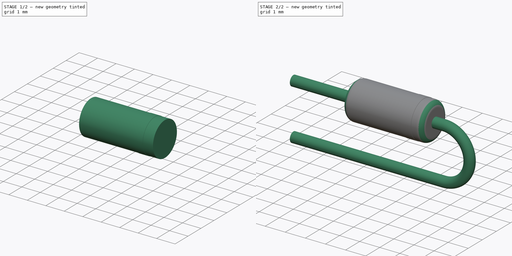
[diagram: build sequence overview — one tinted view per stage of 2, left to right]
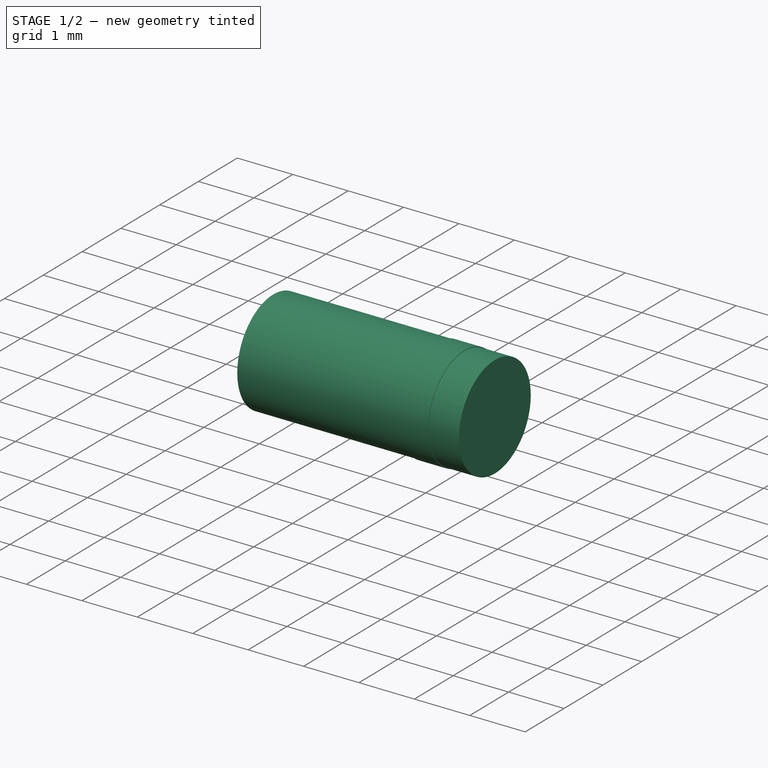
[diagram: stage 1 of 2 — iso view after this stage's code; geometry added in this stage tinted green]
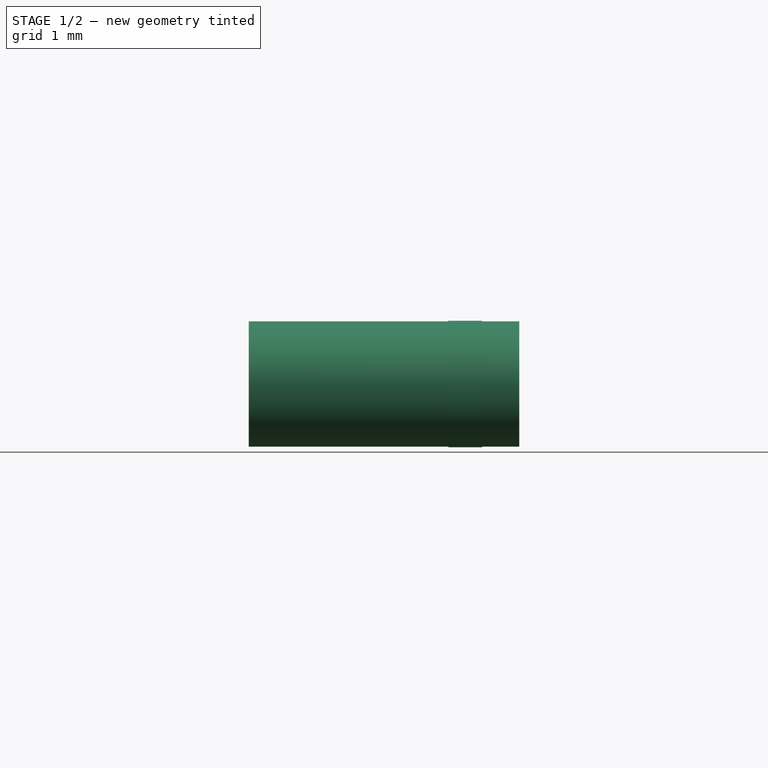
[diagram: stage 1 of 2 — front view after this stage's code; geometry added in this stage tinted green]
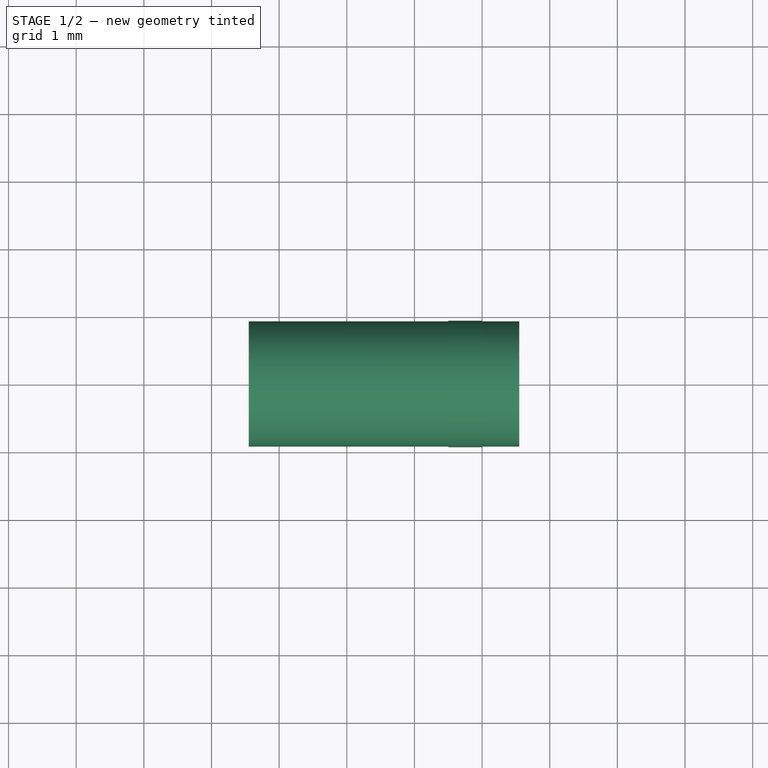
[diagram: stage 1 of 2 — top view after this stage's code; geometry added in this stage tinted green]
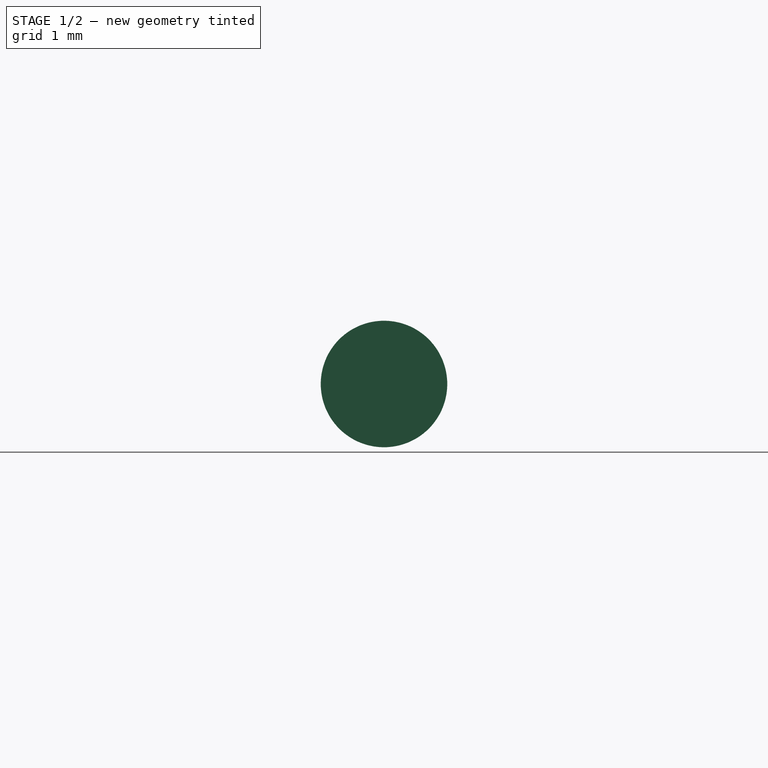
[diagram: stage 1 of 2 — right view after this stage's code; geometry added in this stage tinted green]
FCSTD DOCUMENT  (FreeCAD 0.16R6703 (Git))
Label: Diode_DO-35_SOD27_Vertical_KathodeUp_RM2.54
License: All rights reserved
LicenseURL: http://en.wikipedia.org/wiki/All_rights_reserved
objects: Sketcher::SketchObject×4, PartDesign::Revolution×2, Part::Sweep×1, PartDesign::Fillet×1
note: 10 computed .brp shape members not serialized (recipe doc carries the construction recipe); baked Part::Feature solids carry a one-line shape summary decoded from their .brp

FEATURE [Sketcher::SketchObject] Sketch001
  Placement = pos=(0,0,0) rot=(1,0,0;1.5708rad)
  sketch-geometry (5):
    g0: LineSegment StartX=-2.5 StartY=2.54 StartZ=0 EndX=5 EndY=2.54 EndZ=0
    g1: ArcOfCircle CenterX=5 CenterY=1.27 CenterZ=0 NormalX=0 NormalY=0 NormalZ=1 Radius=1.27 StartAngle=4.71239 EndAngle=7.85398
    g2: LineSegment StartX=5 StartY=0 StartZ=0 EndX=-2.5 EndY=0 EndZ=0
    g3: LineSegment [constr] StartX=5 StartY=1.27 StartZ=0 EndX=5 EndY=2.54 EndZ=0
    g4: LineSegment [constr] StartX=5 StartY=1.27 StartZ=0 EndX=5 EndY=0 EndZ=0
  constraints (15):
    c: Horizontal(g0)
    c: Coincident(g1,g0)
    c: DistanceY(g1,g0) = 1.27
    c: DistanceY(g-1,g0) = 2.54
    c: Coincident(g2,g1)
    c: Horizontal(g2)
    c: DistanceX(g0,g0) = 7.5
    c: Equal(g2,g0)
    c: Coincident(g3,g1)
    c: Coincident(g3,g0)
    c: Coincident(g4,g1)
    c: Coincident(g4,g1)
    c: Vertical(g4)
    c: Parallel(g3,g4)
    c: DistanceX(g2,g-1) = 2.5
FEATURE [Sketcher::SketchObject] Sketch002  label="Axis0"
  Placement = pos=(0,0,0) rot=(1,0,0;1.5708rad)
  sketch-geometry (7):
    g0: LineSegment [constr] StartX=0.55 StartY=2.54 StartZ=0 EndX=4.55 EndY=2.54 EndZ=0
    g1: LineSegment [constr] StartX=0.55 StartY=2.54 StartZ=0 EndX=0.55 EndY=0 EndZ=0
    g2: LineSegment [constr] StartX=0.55 StartY=0 StartZ=0 EndX=0 EndY=0 EndZ=0
    g3: LineSegment StartX=0.55 StartY=2.54 StartZ=0 EndX=4.55 EndY=2.54 EndZ=0
    g4: LineSegment StartX=0.55 StartY=2.54 StartZ=0 EndX=0.55 EndY=3.465 EndZ=0
    g5: LineSegment StartX=4.55 StartY=2.54 StartZ=0 EndX=4.55 EndY=3.465 EndZ=0
    g6: LineSegment StartX=0.55 StartY=3.465 StartZ=0 EndX=4.55 EndY=3.465 EndZ=0
  constraints (19):
    c: Horizontal(g0)
    c: DistanceX(g0,g0) = 4
    c: Coincident(g1,g0)
    c: Vertical(g1)
    c: Coincident(g2,g1)
    c: Coincident(g2,g-1)
    c: Horizontal(g2)
    c: DistanceX(g2,g2) = 0.55
    c: DistanceY(g1,g1) = 2.54
    c: Coincident(g3,g0)
    c: Vertical(g4)
    c: DistanceY(g4,g4) = 0.925
    c: Coincident(g4,g0)
    c: Coincident(g5,g0)
    c: Vertical(g5)
    c: Equal(g5,g4)
    c: Coincident(g3,g0)
    c: Coincident(g6,g4)
    c: Coincident(g6,g5)
FEATURE [PartDesign::Revolution] Revolution
  Angle = 360
  Axis = (4,0,0)
  Base = (0.55,0,2.54)
  Placement = pos=(0,0,0) rot=(1,0,0;1.5708rad)
  ReferenceAxis = -> Sketch002 [Axis0]
  Sketch = -> Sketch002
FEATURE [Sketcher::SketchObject] Sketch003
  Placement = pos=(0,0,0) rot=(1,0,0;1.5708rad)
  sketch-geometry (5):
    g0: LineSegment [constr] StartX=0 StartY=2.54 StartZ=0 EndX=4.17342 EndY=2.54 EndZ=0
    g1: LineSegment StartX=3.5 StartY=3.475 StartZ=0 EndX=4 EndY=3.475 EndZ=0
    g2: LineSegment StartX=4 StartY=3.475 StartZ=0 EndX=4 EndY=3.455 EndZ=0
    g3: LineSegment StartX=4 StartY=3.455 StartZ=0 EndX=3.5 EndY=3.455 EndZ=0
    g4: LineSegment StartX=3.5 StartY=3.455 StartZ=0 EndX=3.5 EndY=3.475 EndZ=0
  constraints (15):
    c: PointOnObject(g0,g-2)
    c: Horizontal(g0)
    c: DistanceY(g-1,g0) = 2.54
    c: Coincident(g1,g2)
    c: Coincident(g2,g3)
    c: Coincident(g3,g4)
    c: Coincident(g4,g1)
    c: Horizontal(g1)
    c: Horizontal(g3)
    c: Vertical(g2)
    c: Vertical(g4)
    c: DistanceY(g2,g1) = 0.02
    c: DistanceX(g1,g1) = 0.5
    c: DistanceY(g0,g2) = 0.915
    c: DistanceX(g0,g3) = 3.5
FEATURE [PartDesign::Revolution] Revolution001
  Angle = 360
  Axis = (4.17342,0,0)
  Base = (0,0,2.54)
  Placement = pos=(0,0,0) rot=(1,0,0;1.5708rad)
  ReferenceAxis = -> Sketch003 [Axis0]
  Sketch = -> Sketch003
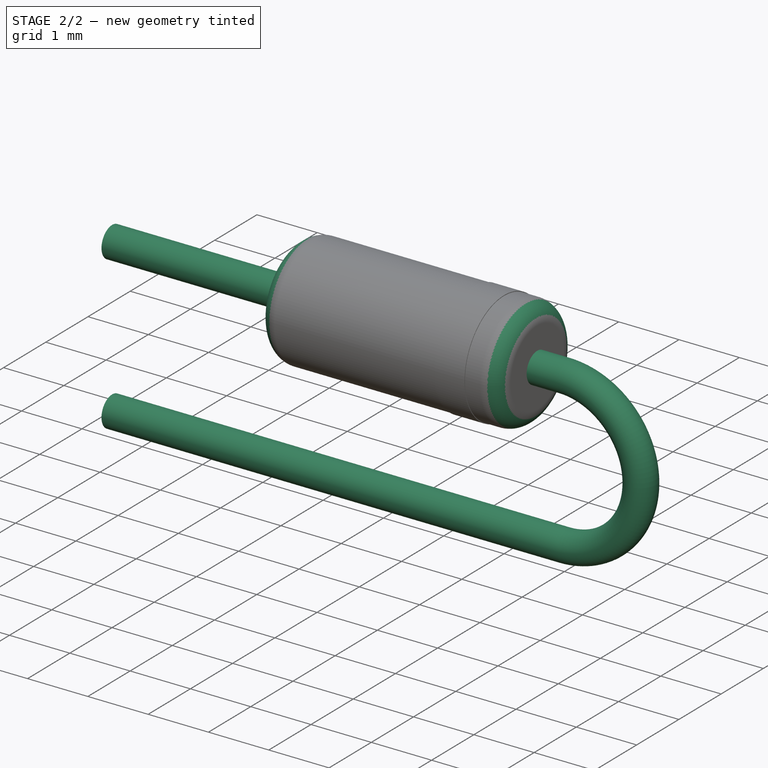
[diagram: stage 2 of 2 — iso view after this stage's code; geometry added in this stage tinted green]
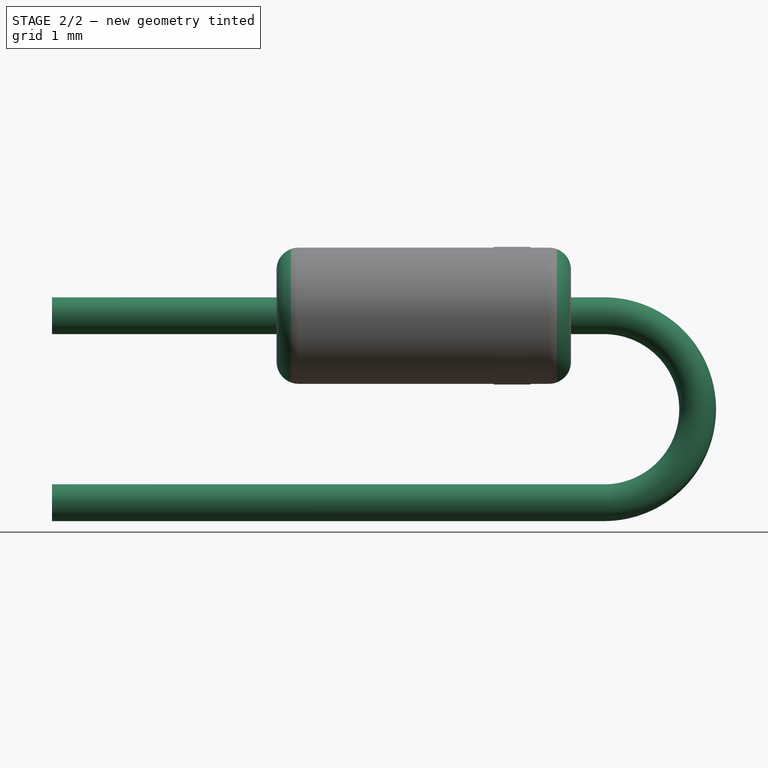
[diagram: stage 2 of 2 — front view after this stage's code; geometry added in this stage tinted green]
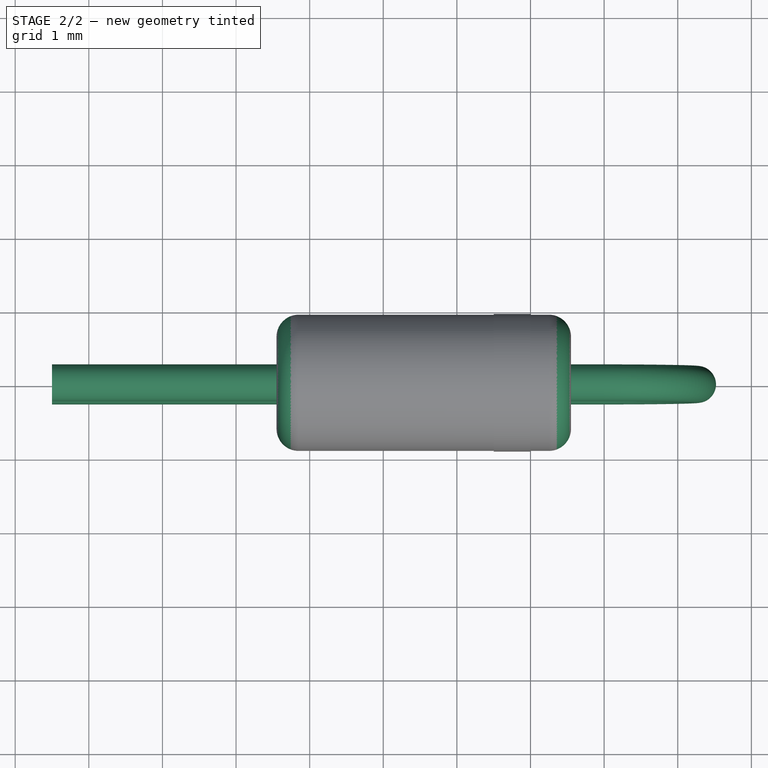
[diagram: stage 2 of 2 — top view after this stage's code; geometry added in this stage tinted green]
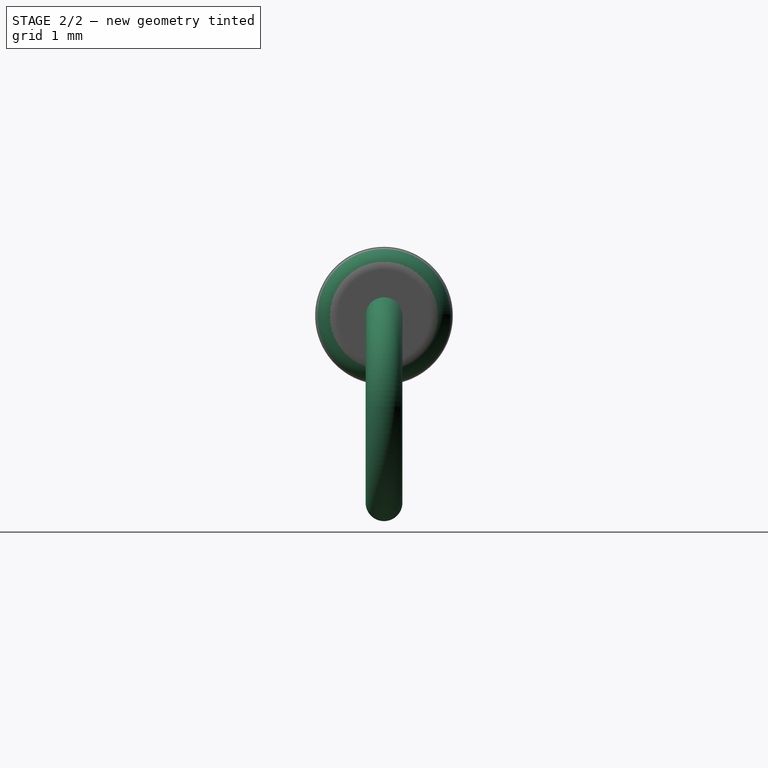
[diagram: stage 2 of 2 — right view after this stage's code; geometry added in this stage tinted green]
FEATURE [Sketcher::SketchObject] Sketch
  Placement = pos=(-2.5,0,0) rot=(0.57735,0.57735,0.57735;2.0944rad)
  sketch-geometry (1):
    g0: Circle CenterX=0 CenterY=0 CenterZ=0 NormalX=0 NormalY=0 NormalZ=1 Radius=0.25
  constraints (2):
    c: Coincident(g0,g-1)
    c: Radius(g0) = 0.25
FEATURE [Part::Sweep] Sweep
  Frenet = true
  Sections = -> [Sketch]
  Solid = true
  Spine = -> Sketch001 [Edge3,Edge2,Edge1]
  Transition = 1
FEATURE [PartDesign::Fillet] Fillet
  Base = -> Revolution [Edge2,Edge1]
  Placement = pos=(0,0,0) rot=(1,0,0;1.5708rad)
  Radius = 0.3
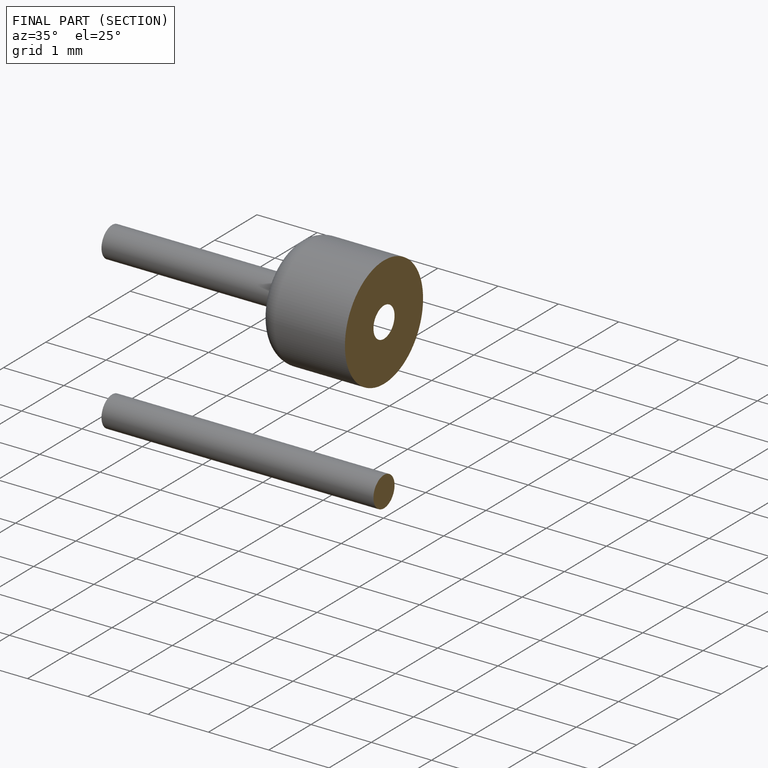
[diagram: finished part — half-section view (interior)]
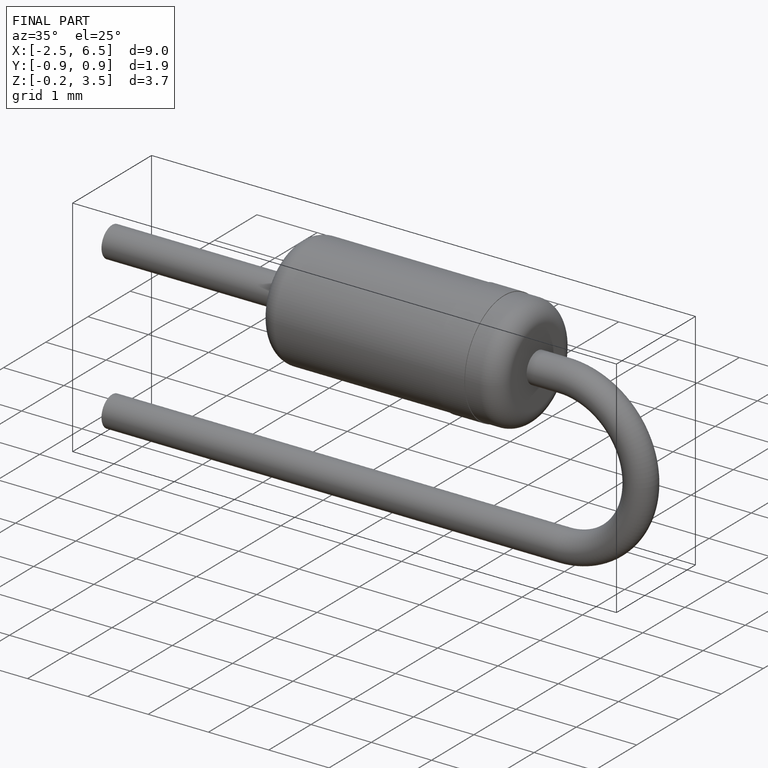
[diagram: finished part — iso view with bounding-box wireframe]
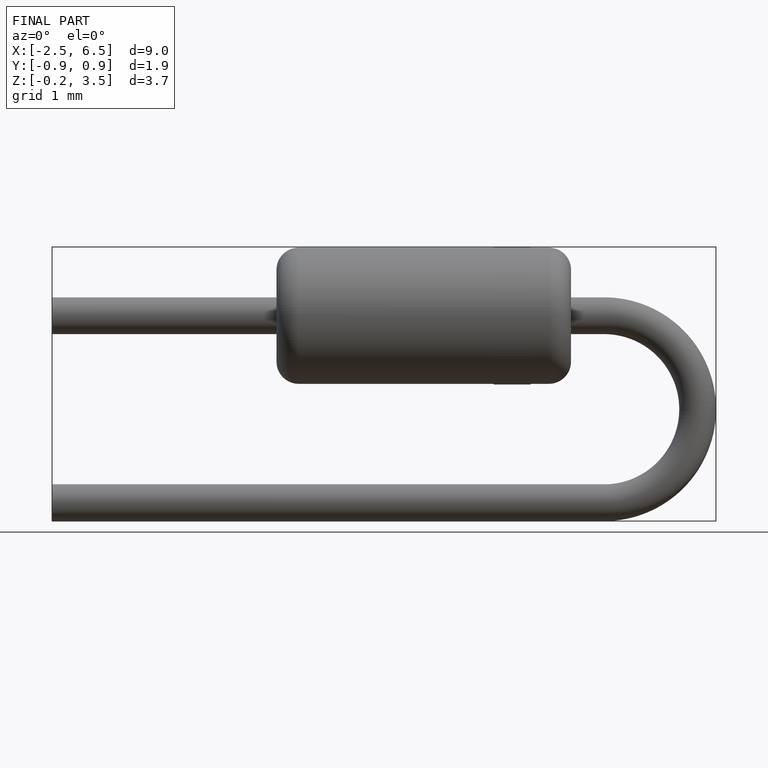
[diagram: finished part — front view with bounding-box wireframe]
